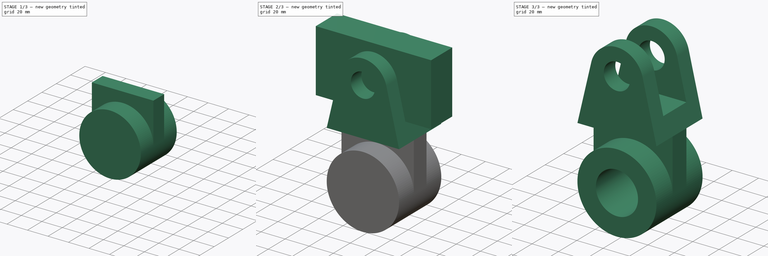
[diagram: build sequence overview — one tinted view per stage of 3, left to right]
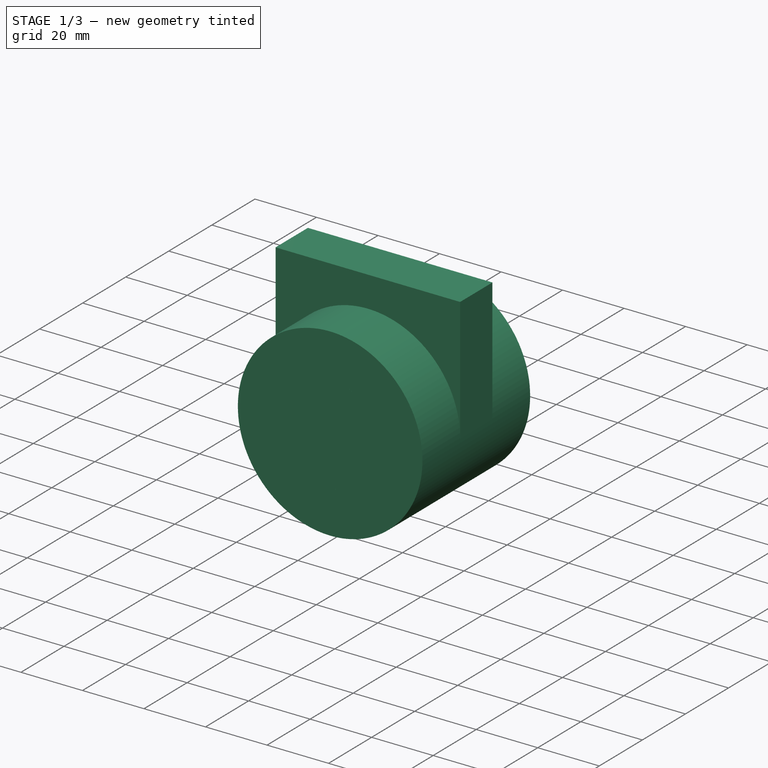
[diagram: stage 1 of 3 — iso view after this stage's code; geometry added in this stage tinted green]
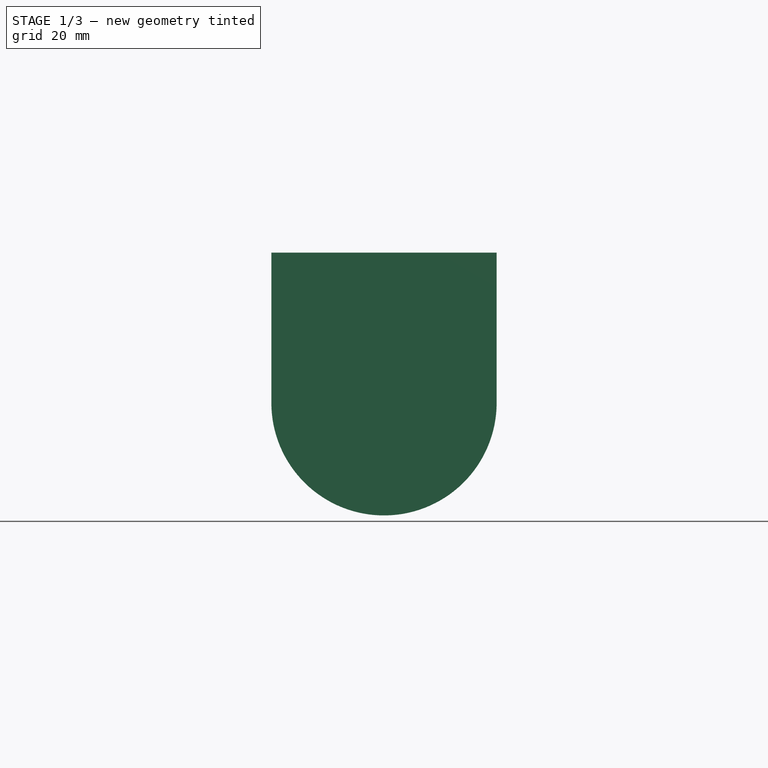
[diagram: stage 1 of 3 — front view after this stage's code; geometry added in this stage tinted green]
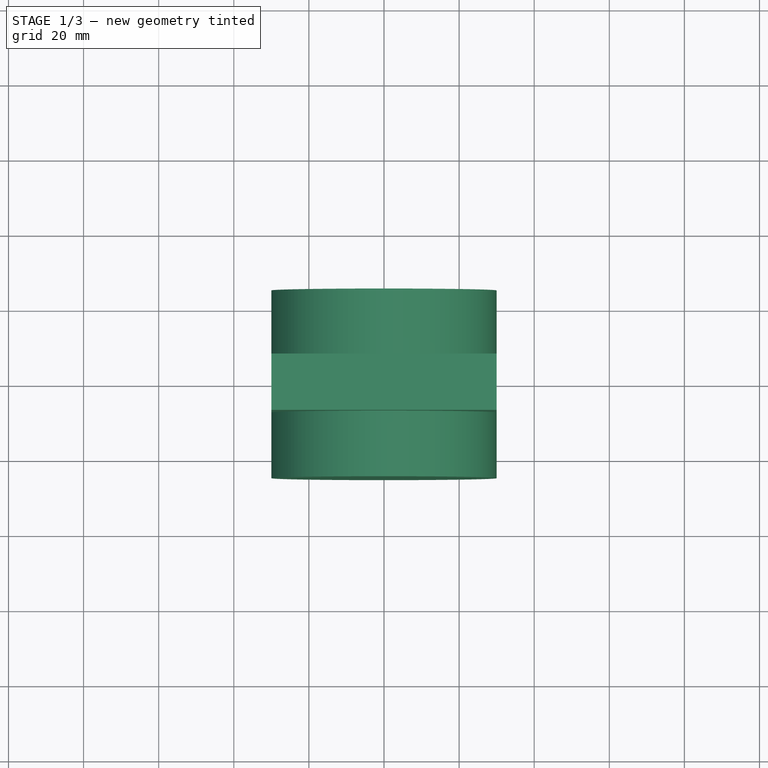
[diagram: stage 1 of 3 — top view after this stage's code; geometry added in this stage tinted green]
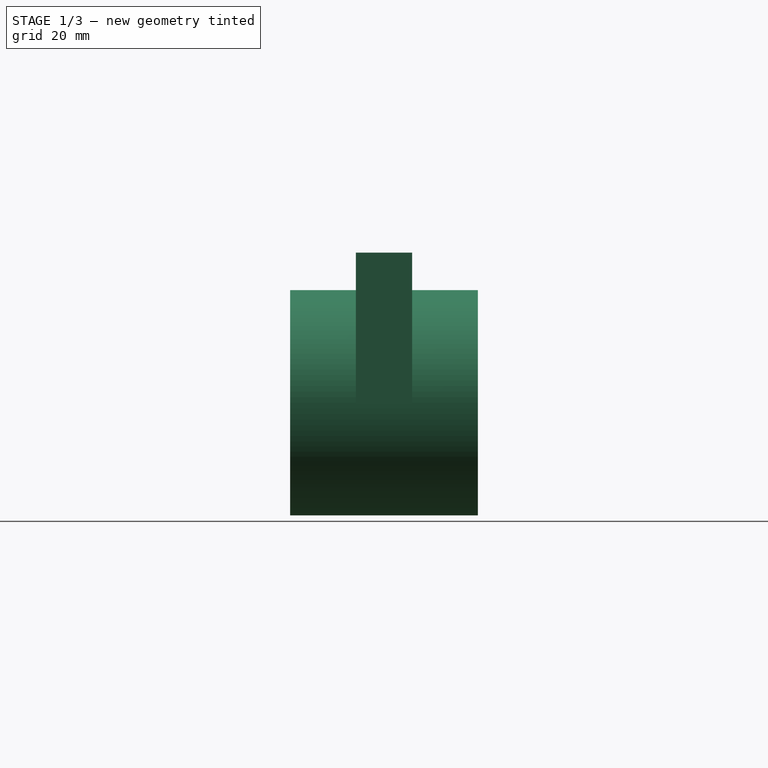
[diagram: stage 1 of 3 — right view after this stage's code; geometry added in this stage tinted green]
FCSTD DOCUMENT  (FreeCAD 0.16R6700 (Git))
Label: ejer7 - 2
License: All rights reserved
LicenseURL: http://en.wikipedia.org/wiki/All_rights_reserved
objects: Sketcher::SketchObject×5, PartDesign::Pad×5, Part::Cut×2, Part::MultiFuse×1
note: 18 computed .brp shape members not serialized (recipe doc carries the construction recipe); baked Part::Feature solids carry a one-line shape summary decoded from their .brp

FEATURE [Sketcher::SketchObject] Sketch002
  Placement = pos=(0,0,0) rot=(-1,0,0;4.71239rad)
  sketch-geometry (3):
    g0: Circle CenterX=0 CenterY=-40 CenterZ=0 NormalX=0 NormalY=0 NormalZ=1 Radius=30
    g1: Circle [constr] CenterX=0 CenterY=40 CenterZ=0 NormalX=0 NormalY=0 NormalZ=1 Radius=10
    g2: Circle CenterX=0 CenterY=-40 CenterZ=0 NormalX=0 NormalY=0 NormalZ=1 Radius=16
  constraints (8):
    c: Radius(g0) = 30
    c: PointOnObject(g0,g-2)
    c: Radius(g1) = 10
    c: PointOnObject(g1,g-2)
    c: DistanceY(g-1,g1) = 40
    c: DistanceY(g0,g1) = 80
    c: Coincident(g0,g2)
    c: Radius(g2) = 16
FEATURE [PartDesign::Pad] Pad002
  Length = 50
  Length2 = 100
  Midplane = true
  Placement = pos=(0,0,0) rot=(-1,0,0;4.71239rad)
  Sketch = -> Sketch002
  Type = 0
FEATURE [Sketcher::SketchObject] Sketch003
  Placement = pos=(0,0,0) rot=(-1,0,0;4.71239rad)
  sketch-geometry (11):
    g0: LineSegment [constr] StartX=-30 StartY=0 StartZ=0 EndX=30 EndY=0 EndZ=0
    g1: LineSegment [constr] StartX=30 StartY=0 StartZ=0 EndX=30 EndY=44.5499 EndZ=0
    g2: LineSegment [constr] StartX=30 StartY=44.5499 StartZ=0 EndX=-30 EndY=44.5499 EndZ=0
    g3: LineSegment [constr] StartX=-30 StartY=44.5499 StartZ=0 EndX=-30 EndY=0 EndZ=0
    g4: Circle [constr] CenterX=0 CenterY=-40.2679 CenterZ=0 NormalX=0 NormalY=0 NormalZ=1 Radius=30
    g5: Circle CenterX=-0.266762 CenterY=39.7321 CenterZ=0 NormalX=0 NormalY=0 NormalZ=1 Radius=0
    g6: Circle [constr] CenterX=0 CenterY=40 CenterZ=0 NormalX=0 NormalY=0 NormalZ=1 Radius=10
    g7: LineSegment StartX=-30 StartY=-40.2818 StartZ=0 EndX=30 EndY=-40.2818 EndZ=0
    g8: LineSegment StartX=30 StartY=-40.2818 StartZ=0 EndX=30 EndY=0 EndZ=0
    g9: LineSegment StartX=30 StartY=0 StartZ=0 EndX=-30 EndY=0 EndZ=0
    g10: LineSegment StartX=-30 StartY=0 StartZ=0 EndX=-30 EndY=-40.2818 EndZ=0
  constraints (27):
    c: Coincident(g0,g1)
    c: Coincident(g1,g2)
    c: Coincident(g2,g3)
    c: Coincident(g3,g0)
    c: Horizontal(g0)
    c: Horizontal(g2)
    c: Vertical(g1)
    c: Vertical(g3)
    c: PointOnObject(g0,g-1)
    c: PointOnObject(g4,g-2)
    c: Radius(g4) = 30
    c: PointOnObject(g6,g-2)
    c: DistanceY(g-1,g6) = 40
    c: Radius(g6) = 10
    c: DistanceY(g4,g5) = 80
    c: Coincident(g7,g8)
    c: Coincident(g8,g9)
    c: Coincident(g9,g10)
    c: Coincident(g10,g7)
    c: Horizontal(g7)
    c: Horizontal(g9)
    c: Vertical(g8)
    c: Vertical(g10)
    c: Coincident(g0,g8)
    c: Coincident(g0,g9)
    c: PointOnObject(g7,g4)
    c: PointOnObject(g7,g4)
FEATURE [PartDesign::Pad] Pad003
  Length = 15
  Length2 = 100
  Midplane = true
  Placement = pos=(0,0,0) rot=(-1,0,0;4.71239rad)
  Sketch = -> Sketch003
  Type = 0
FEATURE [Sketcher::SketchObject] Sketch004
  Placement = pos=(0,0,0) rot=(-1,0,0;4.71239rad)
  sketch-geometry (2):
    g0: Circle CenterX=0 CenterY=-40 CenterZ=0 NormalX=0 NormalY=0 NormalZ=1 Radius=16
    g1: Circle [constr] CenterX=0 CenterY=40 CenterZ=0 NormalX=0 NormalY=0 NormalZ=1 Radius=10
  constraints (6):
    c: Radius(g0) = 16
    c: PointOnObject(g0,g-2)
    c: Radius(g1) = 10
    c: PointOnObject(g1,g-2)
    c: DistanceY(g-1,g1) = 40
    c: DistanceY(g0,g1) = 80
FEATURE [PartDesign::Pad] Pad004
  Length = 50
  Length2 = 100
  Midplane = true
  Placement = pos=(0,0,0) rot=(-1,0,0;4.71239rad)
  Sketch = -> Sketch004
  Type = 0
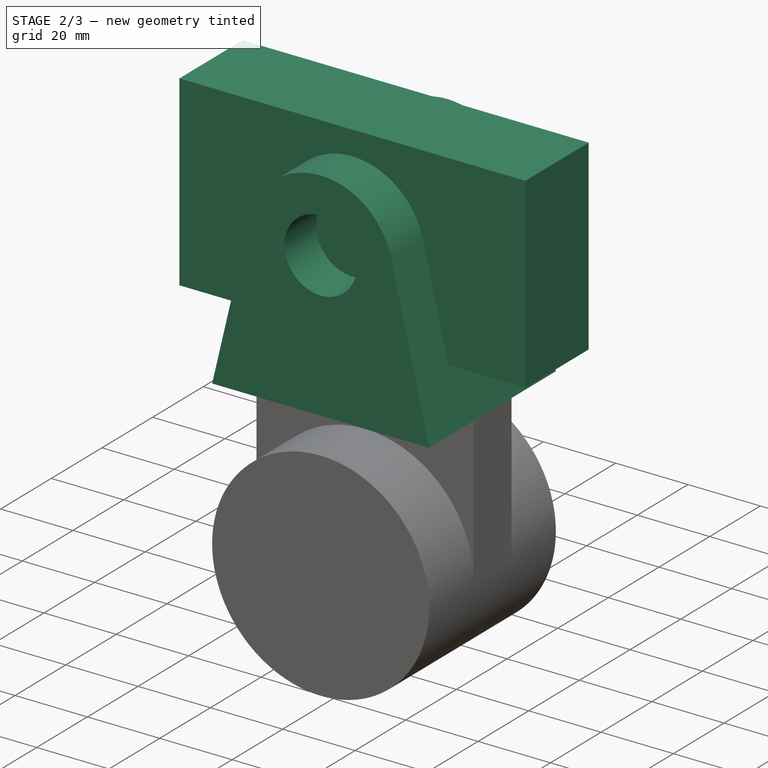
[diagram: stage 2 of 3 — iso view after this stage's code; geometry added in this stage tinted green]
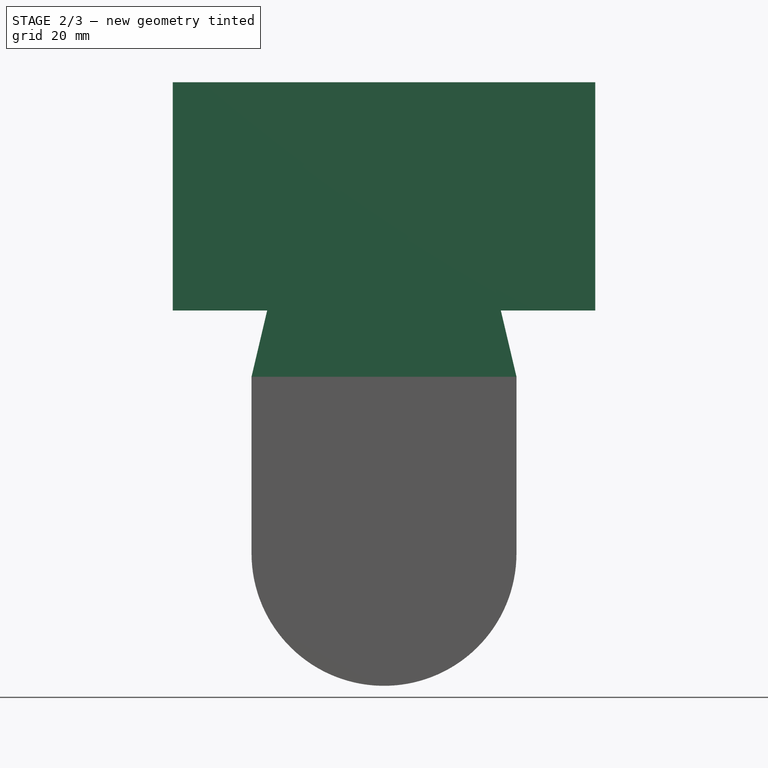
[diagram: stage 2 of 3 — front view after this stage's code; geometry added in this stage tinted green]
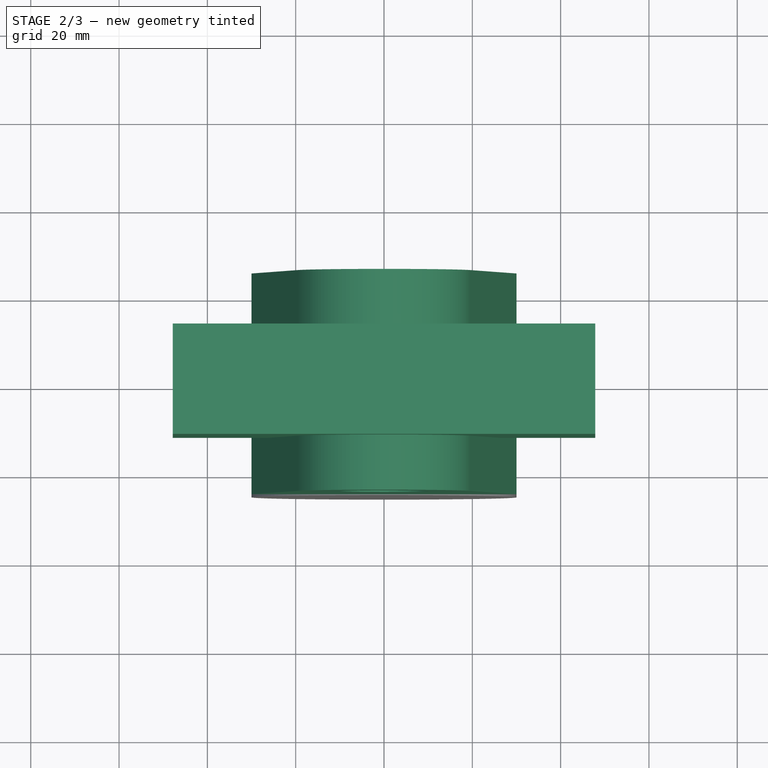
[diagram: stage 2 of 3 — top view after this stage's code; geometry added in this stage tinted green]
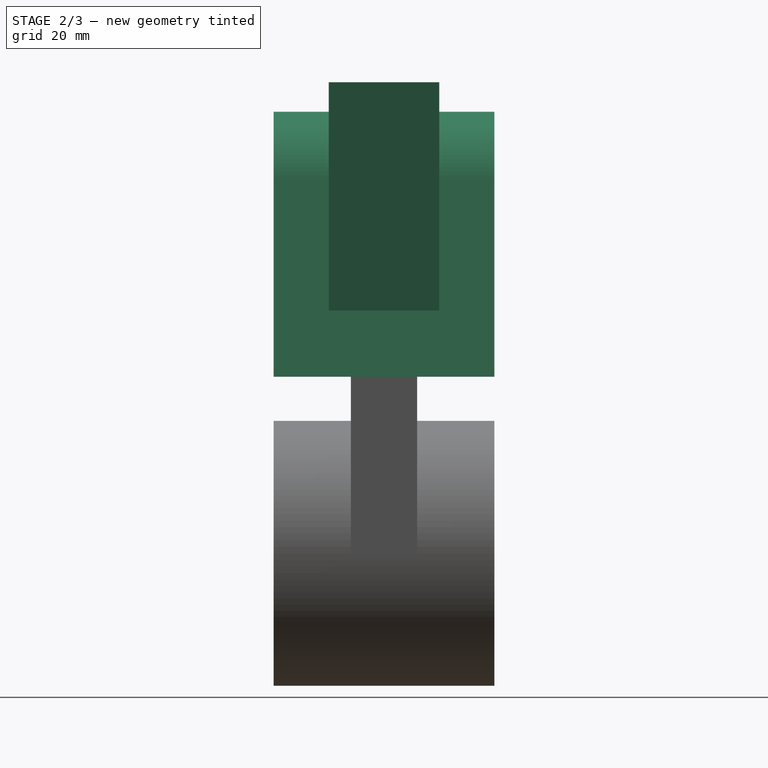
[diagram: stage 2 of 3 — right view after this stage's code; geometry added in this stage tinted green]
FEATURE [Sketcher::SketchObject] Sketch
  Placement = pos=(0,0,0) rot=(-1,0,0;4.71239rad)
  sketch-geometry (5):
    g0: LineSegment StartX=-19.4643 StartY=44.5981 StartZ=0 EndX=-30 EndY=0 EndZ=0
    g1: LineSegment StartX=-30 StartY=0 StartZ=0 EndX=30 EndY=0 EndZ=0
    g2: LineSegment StartX=30 StartY=0 StartZ=0 EndX=19.4643 EndY=44.5981 EndZ=0
    g3: ArcOfCircle CenterX=0 CenterY=40 CenterZ=0 NormalX=0 NormalY=0 NormalZ=1 Radius=20 StartAngle=0.231981 EndAngle=2.90961
    g4: Circle CenterX=0 CenterY=40 CenterZ=0 NormalX=0 NormalY=0 NormalZ=1 Radius=10
  constraints (14):
    c: Coincident(g0,g1)
    c: Coincident(g1,g2)
    c: Symmetric(g0,g1,g-2)
    c: DistanceX(g1,g1) = 60
    c: Radius(g3) = 20
    c: DistanceY(g1,g3) = 40
    c: PointOnObject(g3,g-2)
    c: Coincident(g3,g2)
    c: Coincident(g3,g0)
    c: PointOnObject(g0,g-1)
    c: Symmetric(g2,g0,g-2)
    c: Tangent(g2,g3)
    c: Coincident(g3,g4)
    c: Radius(g4) = 10
FEATURE [PartDesign::Pad] Pad
  Length = 50
  Length2 = 100
  Midplane = true
  Placement = pos=(0,0,0) rot=(-1,0,0;4.71239rad)
  Sketch = -> Sketch
  Type = 0
FEATURE [Sketcher::SketchObject] Sketch001
  Placement = pos=(0,0,0) rot=(-1,0,0;4.71239rad)
  sketch-geometry (4):
    g0: LineSegment StartX=-47.829 StartY=66.6915 StartZ=0 EndX=47.829 EndY=66.6915 EndZ=0
    g1: LineSegment StartX=47.829 StartY=66.6915 StartZ=0 EndX=47.829 EndY=15 EndZ=0
    g2: LineSegment StartX=47.829 StartY=15 StartZ=0 EndX=-47.829 EndY=15 EndZ=0
    g3: LineSegment StartX=-47.829 StartY=15 StartZ=0 EndX=-47.829 EndY=66.6915 EndZ=0
  constraints (10):
    c: Coincident(g0,g1)
    c: Coincident(g1,g2)
    c: Coincident(g2,g3)
    c: Coincident(g3,g0)
    c: Horizontal(g0)
    c: Horizontal(g2)
    c: Vertical(g1)
    c: Vertical(g3)
    c: Symmetric(g2,g1,g-2)
    c: DistanceY(g-1,g2) = 15
FEATURE [PartDesign::Pad] Pad001
  Length = 25
  Length2 = 100
  Midplane = true
  Placement = pos=(0,0,0) rot=(-1,0,0;4.71239rad)
  Sketch = -> Sketch001
  Type = 0
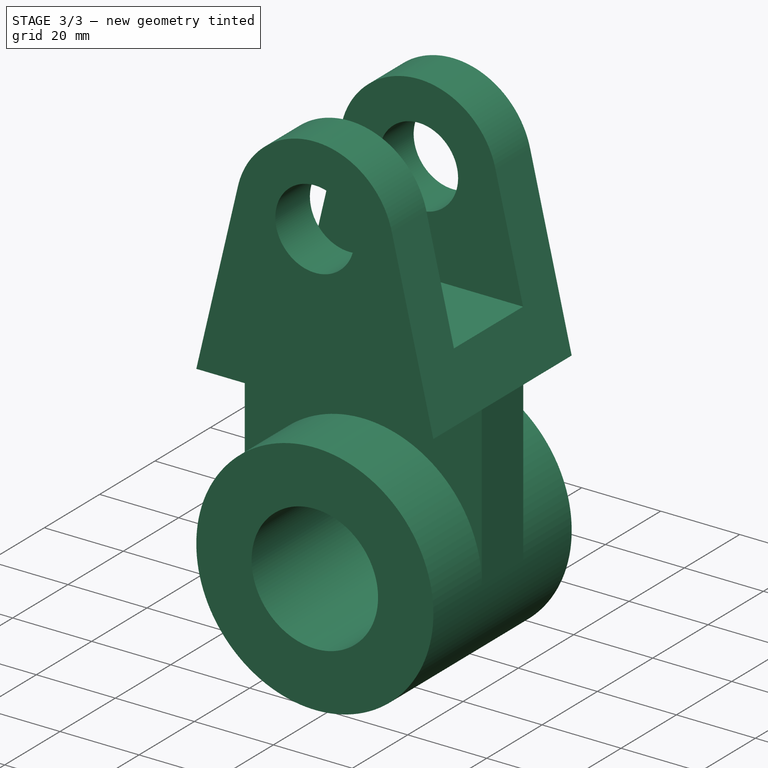
[diagram: stage 3 of 3 — iso view after this stage's code; geometry added in this stage tinted green]
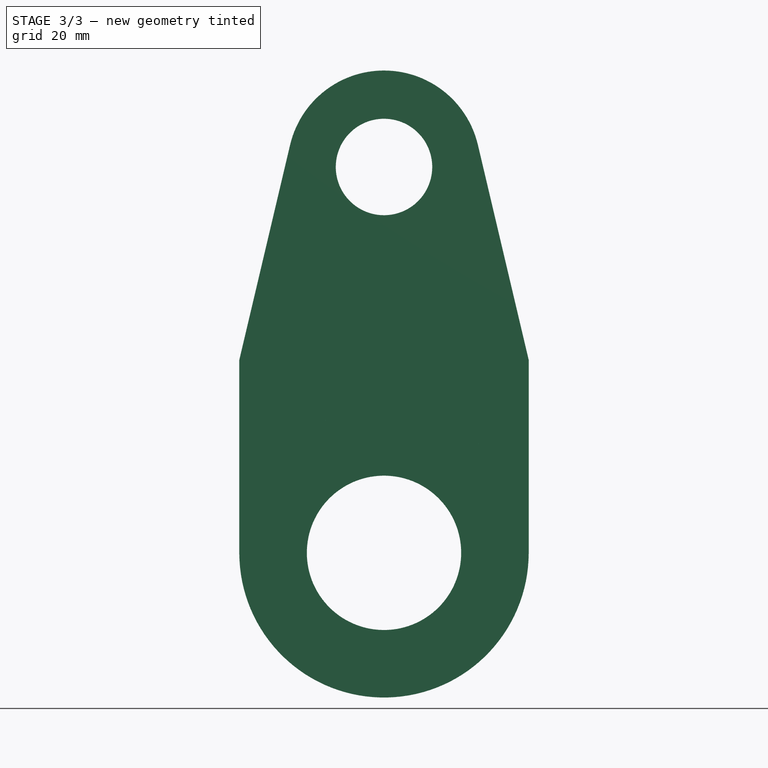
[diagram: stage 3 of 3 — front view after this stage's code; geometry added in this stage tinted green]
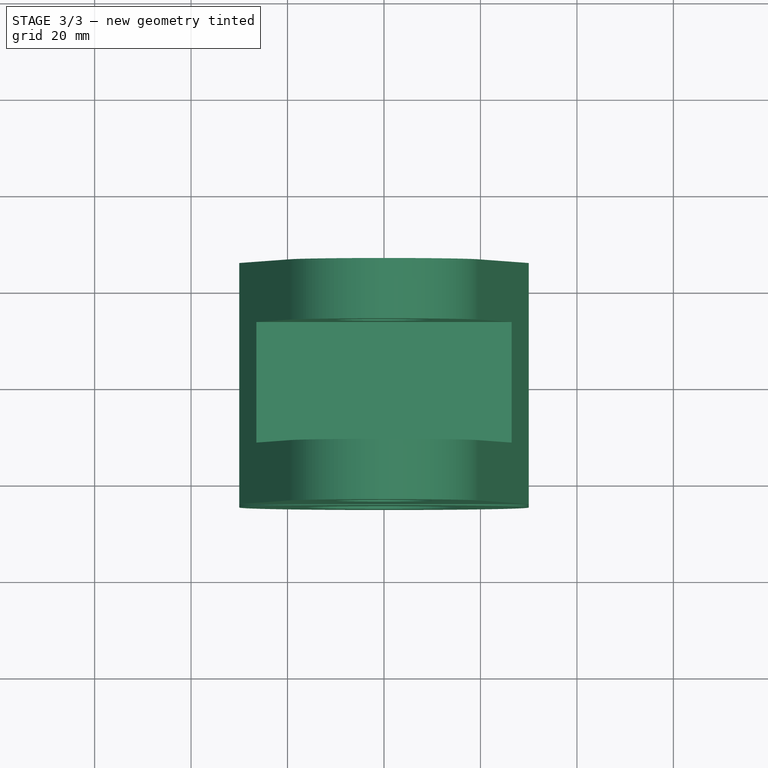
[diagram: stage 3 of 3 — top view after this stage's code; geometry added in this stage tinted green]
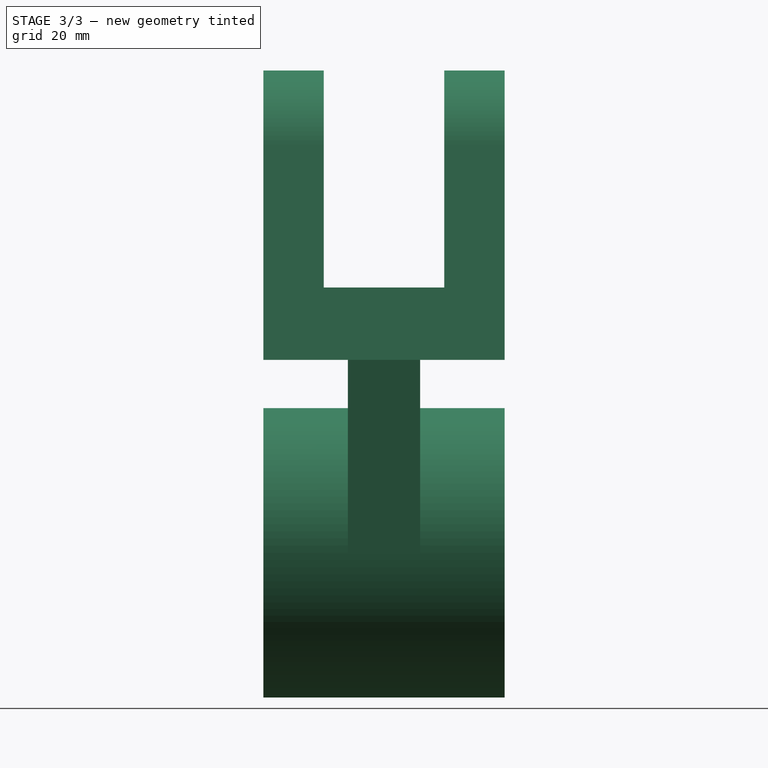
[diagram: stage 3 of 3 — right view after this stage's code; geometry added in this stage tinted green]
FEATURE [Part::Cut] Cut
  Base = -> Pad
  Tool = -> Pad001
FEATURE [Part::MultiFuse] Fusion
  Shapes = -> [Cut,Pad003,Pad002]
FEATURE [Part::Cut] Cut001
  Base = -> Fusion
  Tool = -> Pad004
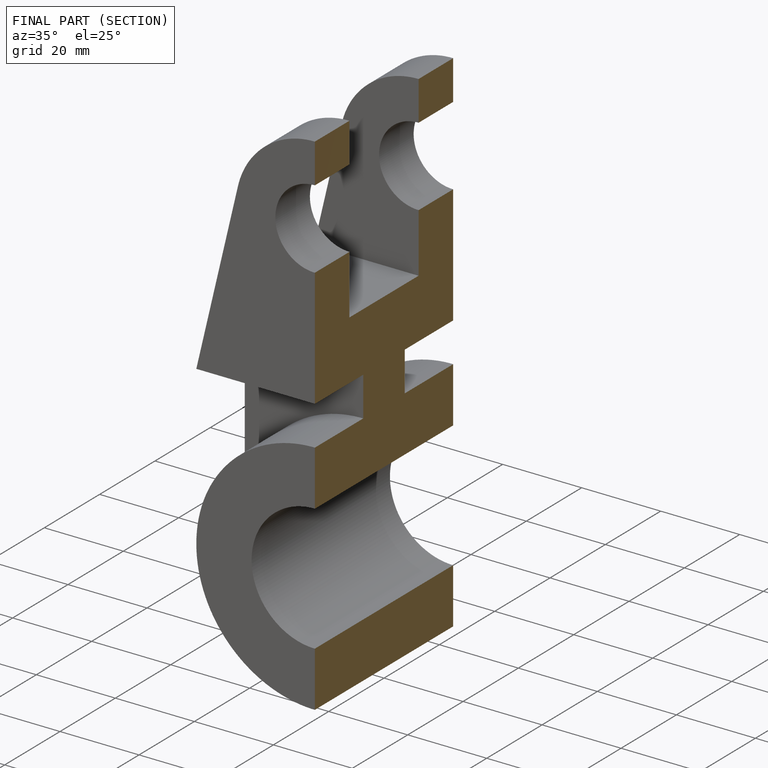
[diagram: finished part — half-section view (interior)]
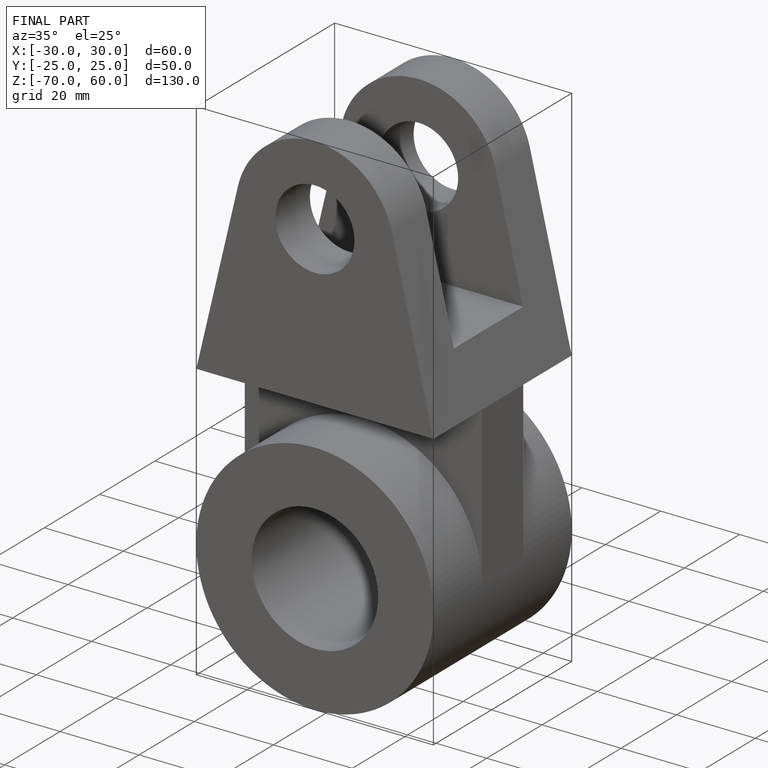
[diagram: finished part — iso view with bounding-box wireframe]
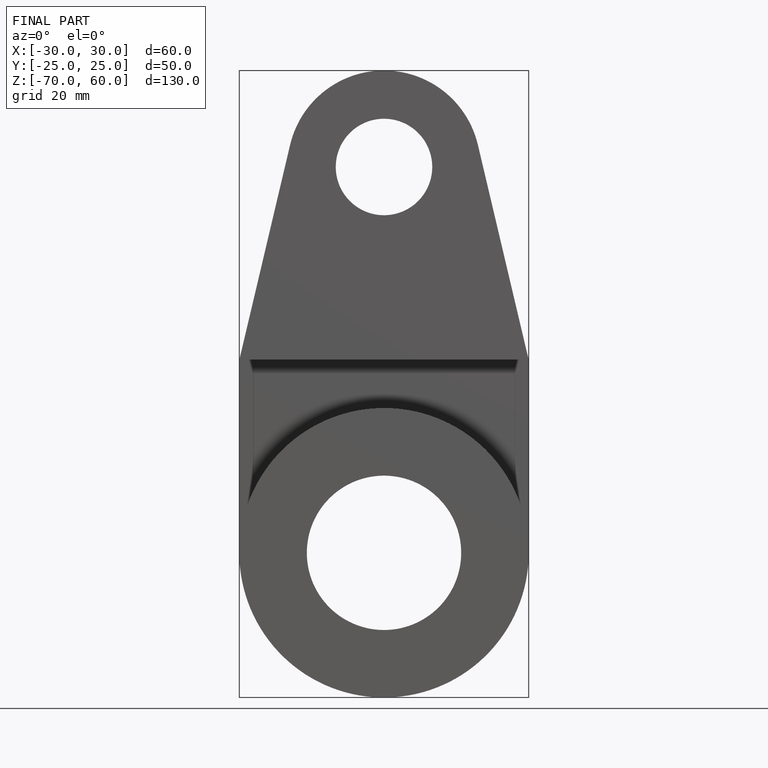
[diagram: finished part — front view with bounding-box wireframe]
